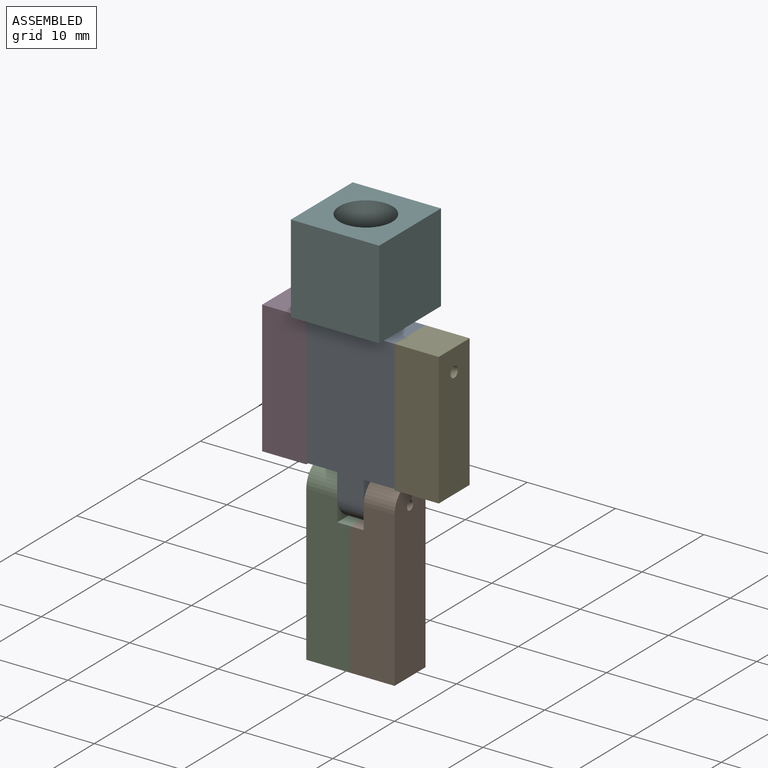
[diagram: assembled view]
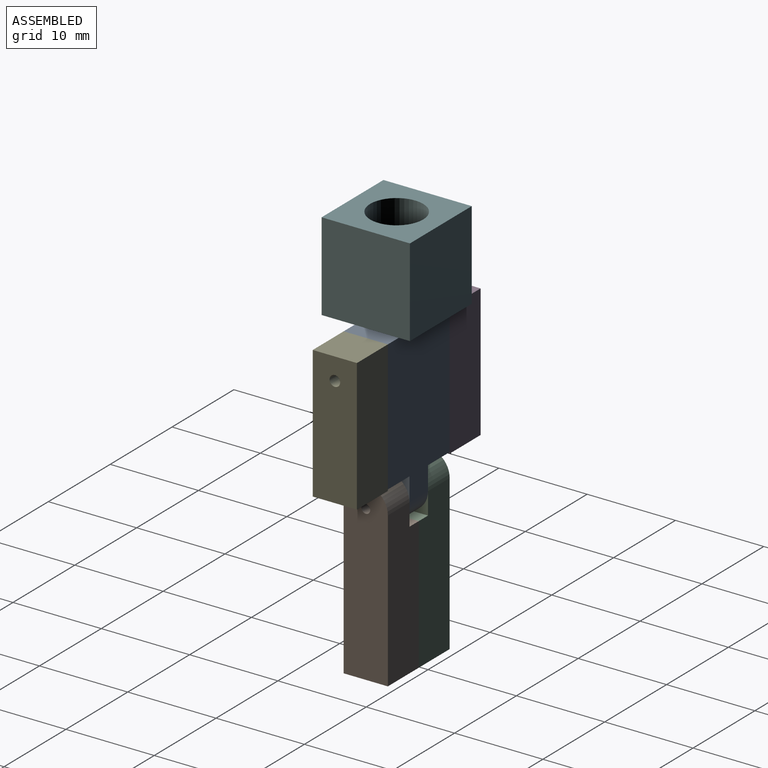
[diagram: assembled view, second angle]
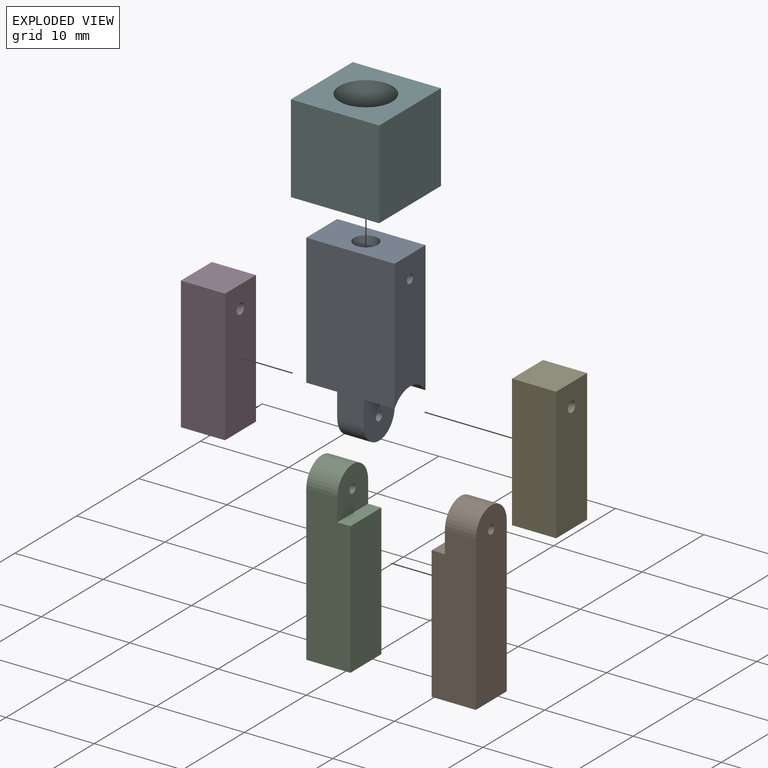
[diagram: exploded view]
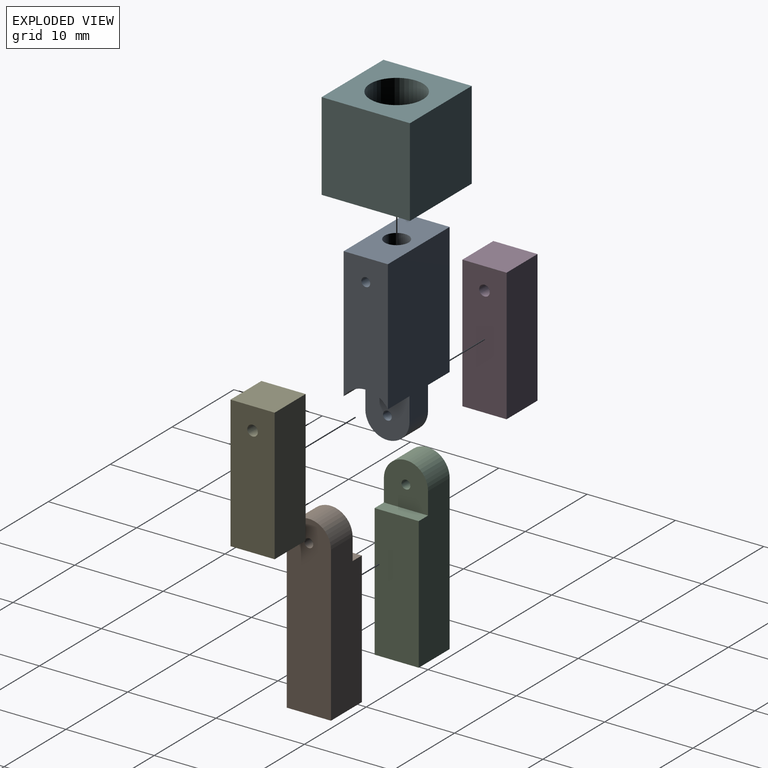
[diagram: exploded view, second angle]
ASSEMBLY  parts=6 mates=5
PART A: 15 faces, bbox 10x5x20 mm
  f0: plane 14.84x5mm, normal (-1,0,0), area 68.7mm2, adj f1,f2,f3,f7,f11
  f1: plane 17.5x10mm, normal (0,-1,0), area 156.4mm2, adj f0,f3,f4,f9,f10,f11,f12,f14
  f2: plane 17.5x10mm, normal (0,1,0), area 156.4mm2, adj f0,f3,f4,f9,f10,f11,f12,f14
  f3: plane 10x5mm, normal (0,0,1), area 44.3mm2, adj f0,f1,f2,f4,f5
  f4: plane 14.84x5mm, normal (1,0,0), area 68.7mm2, adj f1,f2,f3,f8,f9
  f5: cylinder r=1.35mm len=8mm, axis (0,0,1), area 66.3mm2, adj f3,f6,f7,f8
  f6: plane 2.7x2.7mm, normal (0,0,1), area 5.7mm2, adj f5
  f7: cylinder r=0.5mm len=3.75mm, axis (1,0,0), area 11.6mm2, adj f0,f5
  f8: cylinder r=0.5mm len=3.75mm, axis (1,0,0), area 11.6mm2, adj f4,f5
  f9: cylinder r=3mm len=5mm, axis (1,0,0), area 20.7mm2, adj f1,f2,f4,f10
  f10: plane 6.5x5mm, normal (1,0,0), area 27mm2, adj f1,f2,f9,f13,f14
  f11: cylinder r=3mm len=5mm, axis (-1,0,0), area 20.7mm2, adj f0,f1,f2,f12
  f12: plane 6.5x5mm, normal (-1,0,0), area 27mm2, adj f1,f2,f11,f13,f14
  f13: cylinder r=0.5mm len=3mm, axis (-1,0,0), area 9.4mm2, adj f10,f12
  f14: cylinder r=2.5mm len=5mm, axis (-1,0,0), area 23.6mm2, adj f1,f2,f10,f12
PART B: 11 faces, bbox 5x5x20 mm
  f0: plane 17.5x5mm, normal (1,0,0), area 83.8mm2, adj f1,f2,f4,f5,f6,f7
  f1: cylinder r=2.5mm len=5mm, axis (0,1,0), area 27.5mm2, adj f0,f3,f5,f6
  f2: plane 15x5mm, normal (0,-1,0), area 75mm2, adj f0,f3,f4,f7
  f3: plane 17.5x5mm, normal (-1,0,0), area 83.8mm2, adj f1,f2,f4,f5,f6,f7
  f4: plane 5x5mm, normal (0,0,-1), area 17.9mm2, adj f0,f2,f3,f5,f9
  f5: plane 20x5mm, normal (0,1,0), area 96.5mm2, adj f0,f1,f3,f4,f8
  f6: plane 5x5mm, normal (0,-1,0), area 21.5mm2, adj f0,f1,f3,f7,f8
  f7: plane 5x1.5mm, normal (0,0,1), area 7.5mm2, adj f0,f2,f3,f6
  f8: cylinder r=0.5mm len=3.5mm, axis (0,-1,0), area 11mm2, adj f5,f6
  f9: cylinder r=1.5mm len=3mm, axis (0,0,-1), area 14.1mm2, adj f4,f10
  f10: plane 3x3mm, normal (0,0,-1), area 7.1mm2, adj f9
PART C: same geometry as B
PART D: 9 faces, bbox 5x15x5 mm
  f0: plane 15x5mm, normal (0,0,-1), area 75mm2, adj f1,f3,f4,f5
  f1: plane 15x5mm, normal (1,0,0), area 66.8mm2, adj f0,f2,f4,f5,f6,f7
  f2: plane 15x5mm, normal (0,0,1), area 75mm2, adj f1,f3,f4,f5
  f3: plane 15x5mm, normal (-1,0,0), area 73.9mm2, adj f0,f2,f4,f5,f6
  f4: plane 5x5mm, normal (0,-1,0), area 25mm2, adj f0,f1,f2,f3
  f5: plane 5x5mm, normal (0,1,0), area 25mm2, adj f0,f1,f2,f3
  f6: cylinder r=0.6mm len=5mm, axis (1,0,0), area 18.8mm2, adj f1,f3
  f7: cylinder r=1.5mm len=3mm, axis (1,0,0), area 14.1mm2, adj f1,f8
  f8: plane 3x3mm, normal (1,0,0), area 7.1mm2, adj f7
PART E: same geometry as D
PART F: 11 faces, bbox 10x11x10 mm
  f0: cylinder r=1.9mm len=3.8mm, axis (0,-1,0), area 29.8mm2, adj f8,f9
  f1: plane 10x10mm, normal (-1,0,0), area 100mm2, adj f2,f4,f5,f6
  f2: plane 10x10mm, normal (0,0,-1), area 100mm2, adj f1,f3,f5,f6
  f3: plane 10x10mm, normal (1,0,0), area 100mm2, adj f2,f4,f5,f6
  f4: plane 10x10mm, normal (0,0,1), area 100mm2, adj f1,f3,f5,f6
  f5: plane 10x10mm, normal (0,-1,0), area 71.7mm2, adj f1,f2,f3,f4,f7
  f6: plane 10x10mm, normal (0,1,0), area 71.7mm2, adj f1,f2,f3,f4,f10
  f7: cylinder r=3mm len=6mm, axis (0,1,0), area 18.8mm2, adj f5,f8
  f8: plane 6x6mm, normal (0,-1,0), area 16.9mm2, adj f0,f7
  f9: plane 6x6mm, normal (0,1,0), area 16.9mm2, adj f0,f10
  f10: cylinder r=3mm len=8.5mm, axis (0,1,0), area 160.2mm2, adj f6,f9
PLACE A t=(1.5,0,0)mm
PLACE B rot(axis=(0,0,-1),90deg) t=(6.5,-2.5,-15)mm
PLACE C rot(axis=(0,0,1),90deg) t=(-3.5,-2.5,-15)mm
PLACE D rot(axis=(0,-0.71,-0.71),180deg) t=(-6,-2.5,10)mm
PLACE E rot(axis=(0,-0.71,-0.71),180deg) t=(9,-2.5,10)mm
PLACE F rot(axis=(1,0,0),90deg) t=(1.5,-2.5,21)mm
MATE revolute B.f8 <-> A.f14  axis (-1,0,0) through (3,-2.5,-7.5)mm
MATE revolute C.f8 <-> A.f14  axis (1,0,0) through (0,-2.5,-7.5)mm
MATE revolute E.f6 <-> A.f7  axis (-1,0,0) through (6.5,-2.5,7.5)mm
MATE fastened F.f0 <-> A.f5  axis (0,0,-1) through (1.5,-2.5,10)mm
MATE fastened D.f6 <-> A.f7  axis (1,0,0) through (-3.5,-2.5,7.5)mm
